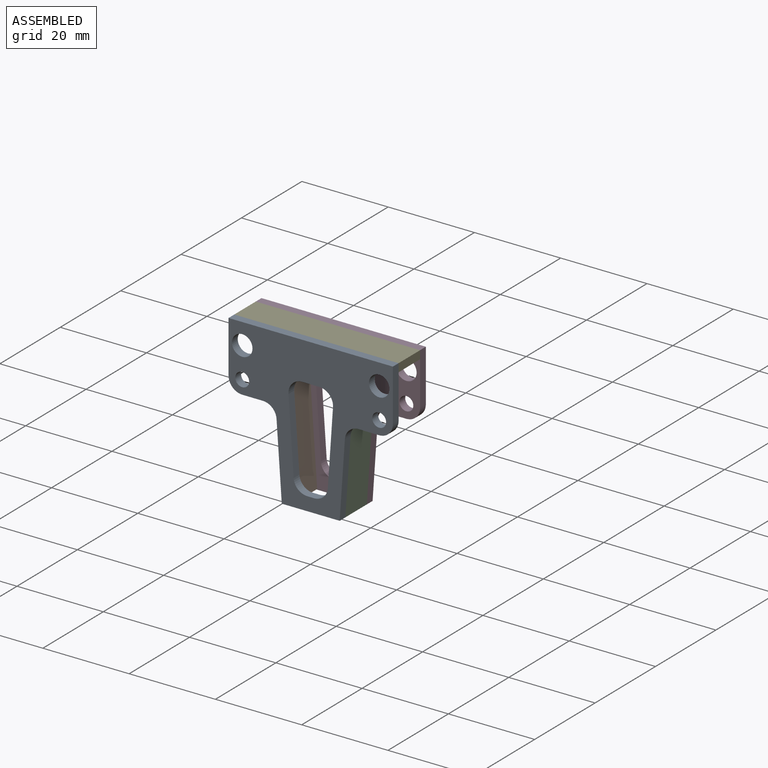
[diagram: assembled view]
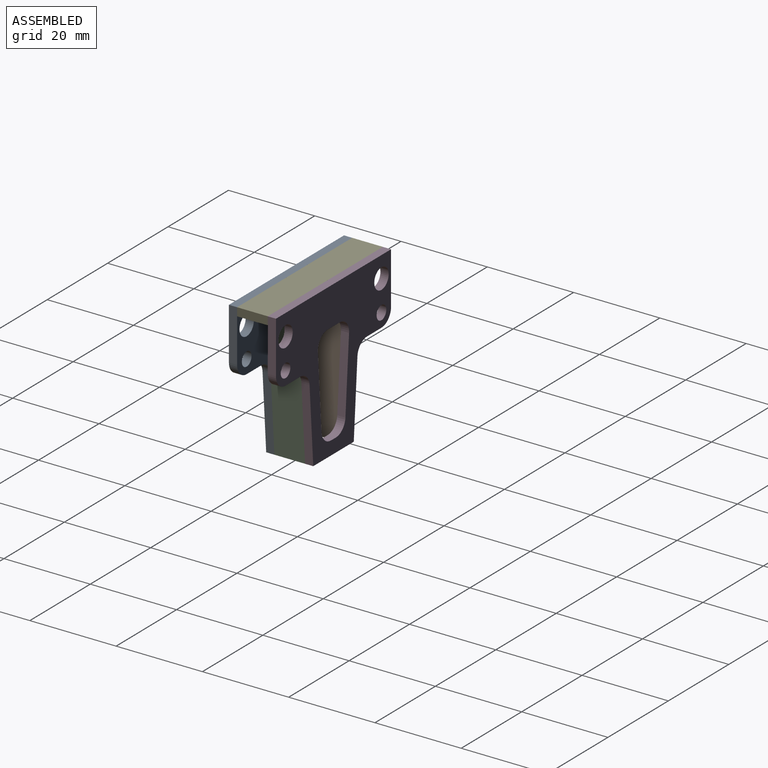
[diagram: assembled view, second angle]
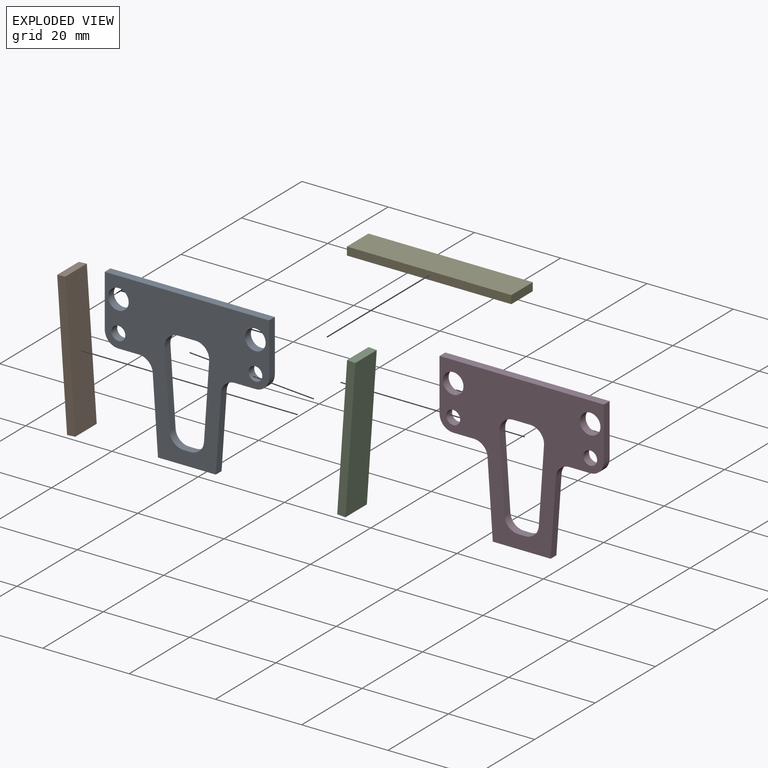
[diagram: exploded view]
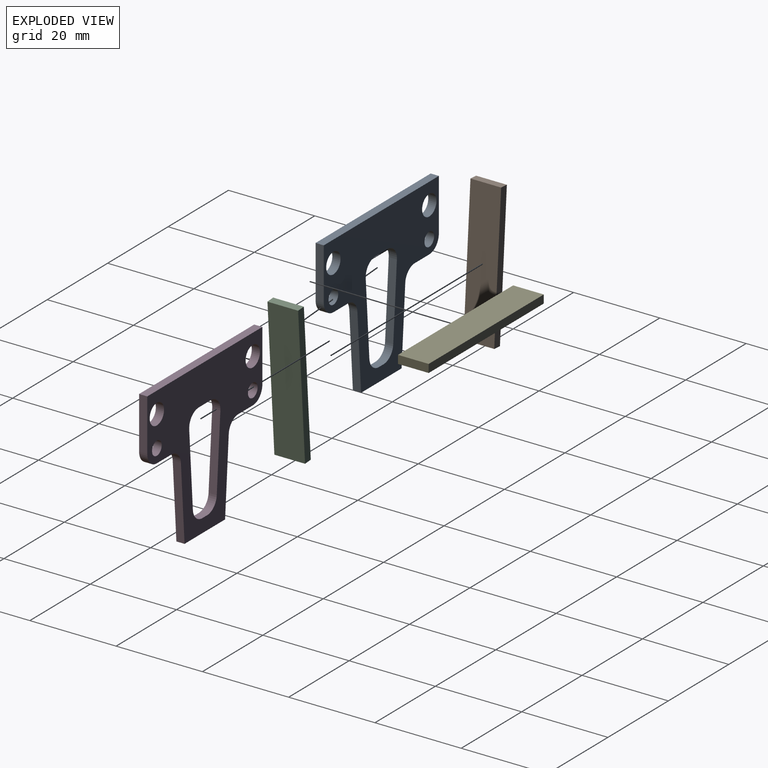
[diagram: exploded view, second angle]
ASSEMBLY  parts=5 mates=4
PART A: 26 faces, bbox 38.1x1.9x35.6 mm
  f0: cylinder r=3.17mm len=3.4mm, axis (0,1,0), area 9.9mm2, adj f1,f18,f24,f25
  f1: plane 17.3x1.9mm, normal (-1,0,0.07), area 32.9mm2, adj f0,f2,f24,f25
  f2: cylinder r=3.17mm len=3.17mm, axis (0,1,0), area 9mm2, adj f1,f3,f24,f25
  f3: plane 1.9x1.58mm, normal (0,0,1), area 3mm2, adj f2,f4,f24,f25
  f4: cylinder r=3.17mm len=3.17mm, axis (0,1,0), area 9mm2, adj f3,f5,f24,f25
  f5: plane 17.3x1.9mm, normal (1,0,0.07), area 32.9mm2, adj f4,f6,f24,f25
  f6: cylinder r=3.17mm len=3.4mm, axis (0,1,0), area 9.9mm2, adj f5,f18,f24,f25
  f7: cylinder r=3.17mm len=3.18mm, axis (0,1,0), area 9.5mm2, adj f8,f19,f24,f25
  f8: plane 12.05x1.9mm, normal (1,0,0), area 22.9mm2, adj f7,f9,f24,f25
  f9: plane 38.1x1.9mm, normal (0,0,1), area 72.3mm2, adj f8,f10,f24,f25
  f10: plane 12.05x1.9mm, normal (-1,0,0), area 22.9mm2, adj f9,f11,f24,f25
  f11: cylinder r=3.17mm len=3.18mm, axis (0,1,0), area 9.5mm2, adj f10,f12,f24,f25
  f12: plane 4.79x1.9mm, normal (0,0,-1), area 9.1mm2, adj f11,f13,f24,f25
  f13: cylinder r=3.17mm len=3.17mm, axis (0,1,0), area 9mm2, adj f12,f14,f24,f25
  f14: plane 17.42x1.9mm, normal (-1,0,-0.07), area 33.1mm2, adj f13,f15,f24,f25
  f15: plane 13.41x1.9mm, normal (0,0,-1), area 25.5mm2, adj f14,f16,f24,f25
  f16: plane 17.42x1.9mm, normal (1,0,-0.07), area 33.1mm2, adj f15,f17,f24,f25
  f17: cylinder r=3.17mm len=3.17mm, axis (0,1,0), area 9mm2, adj f16,f19,f24,f25
  f18: plane 3.99x1.9mm, normal (0,0,-1), area 7.6mm2, adj f0,f6,f24,f25
  f19: plane 4.79x1.9mm, normal (0,0,-1), area 9.1mm2, adj f7,f17,f24,f25
  f20: cylinder r=2.38mm len=4.75mm, axis (0,1,0), area 28.3mm2, adj f24,f25
  f21: cylinder r=1.6mm len=3.2mm, axis (0,1,0), area 19.1mm2, adj f24,f25
  f22: cylinder r=2.38mm len=4.75mm, axis (0,1,0), area 28.3mm2, adj f24,f25
  f23: cylinder r=1.6mm len=3.2mm, axis (0,1,0), area 19.1mm2, adj f24,f25
  f24: plane 38.1x35.61mm, normal (0,-1,0), area 622.7mm2, adj f0,f1,f2,f3,f4,f5,f6,f7
  f25: plane 38.1x35.61mm, normal (0,1,0), area 622.7mm2, adj f0,f1,f2,f3,f4,f5,f6,f7
PART B: 6 faces, bbox 33x7.1x1.9 mm
  f0: plane 7.11x1.9mm, normal (-1,0,0), area 13.5mm2, adj f1,f3,f4,f5
  f1: plane 33.02x1.9mm, normal (0,-1,0), area 62.7mm2, adj f0,f2,f4,f5
  f2: plane 7.11x1.9mm, normal (1,0,0), area 13.5mm2, adj f1,f3,f4,f5
  f3: plane 33.02x1.9mm, normal (0,1,0), area 62.7mm2, adj f0,f2,f4,f5
  f4: plane 33.02x7.11mm, normal (0,0,1), area 234.8mm2, adj f0,f1,f2,f3
  f5: plane 33.02x7.11mm, normal (0,0,-1), area 234.8mm2, adj f0,f1,f2,f3
PART C: same geometry as B
PART D: same geometry as A
PART E: 6 faces, bbox 38.1x7.1x1.9 mm
  f0: plane 7.11x1.9mm, normal (-1,0,0), area 13.5mm2, adj f1,f3,f4,f5
  f1: plane 38.1x1.9mm, normal (0,-1,0), area 72.3mm2, adj f0,f2,f4,f5
  f2: plane 7.11x1.9mm, normal (1,0,0), area 13.5mm2, adj f1,f3,f4,f5
  f3: plane 38.1x1.9mm, normal (0,1,0), area 72.3mm2, adj f0,f2,f4,f5
  f4: plane 38.1x7.11mm, normal (0,0,1), area 271mm2, adj f0,f1,f2,f3
  f5: plane 38.1x7.11mm, normal (0,0,-1), area 271mm2, adj f0,f1,f2,f3
PLACE A t=(-22.73,-2.31,-4.97)mm
PLACE B rot(axis=(0,-1,0),94deg) t=(-16.94,-12.39,3.55)mm
PLACE C rot(axis=(0,-1,0),86deg) t=(-3.11,-12.39,3.42)mm
PLACE D t=(-22.73,6.7,-4.97)mm
PLACE E t=(-13.37,-12.39,20.52)mm
MATE fastened C.f5 <-> A.f16  axis (1,0,-0.07) through (-4.27,-2.31,-13.19)mm
MATE fastened D.f24 <-> E.f3  axis (0,-1,0) through (-10.97,4.8,22.41)mm
MATE fastened B.f4 <-> D.f14  axis (-1,0,-0.07) through (-17.68,4.8,-13.19)mm
MATE fastened E.f1 <-> A.f25  axis (0,-1,0) through (-10.97,-2.31,22.41)mm
